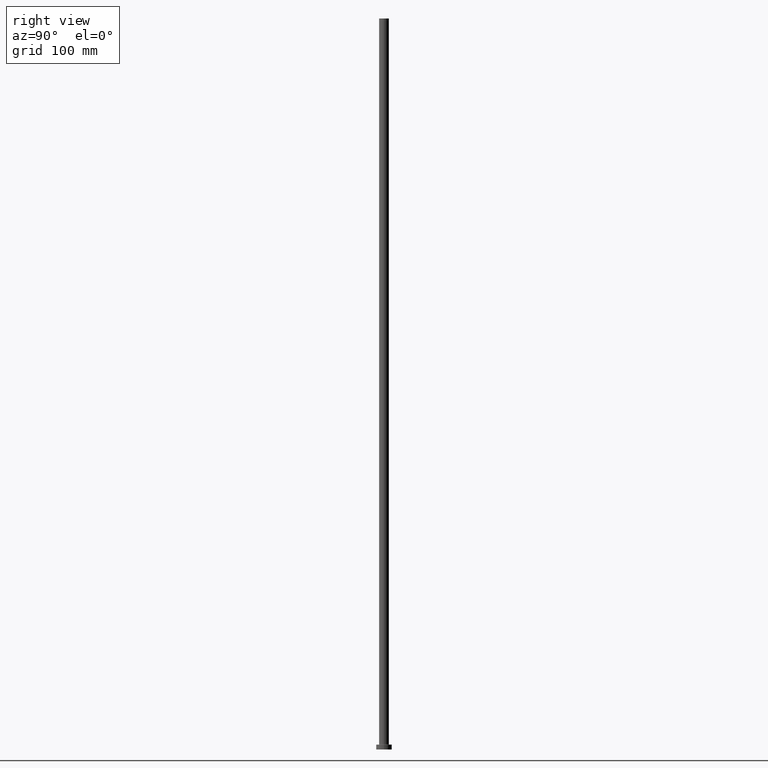
[diagram: clean part render]
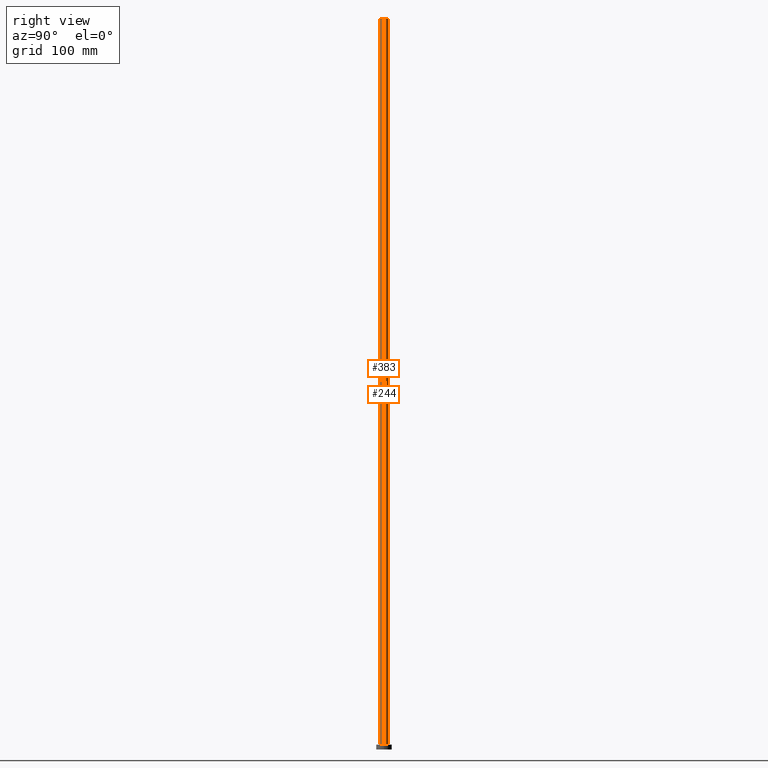
[diagram: same view with one multi-face feature highlighted, each face labeled with its STEP entity id]
A machine part, right view. The highlighted faces form ONE feature: a constant-radius fillet chain: 2 tangent blend faces with common blend radius 5 mm. The faces share edges in the B-rep.
Their STEP definitions:
[1] entity #383 (Cylinder):
#23 = AXIS2_PLACEMENT_3D ( 'NONE', #111, #321, #455 ) ;
#27 = CARTESIAN_POINT ( 'NONE',  ( -5.000000000000000000, 0.000000000000000000, 5.499999999999949374 ) ) ;
#35 = CYLINDRICAL_SURFACE ( 'NONE', #436, 5.000000000000000000 ) ;
#39 = VECTOR ( 'NONE', #63, 1000.000000000000000 ) ;
#55 = EDGE_CURVE ( 'NONE', #403, #115, #240, .T. ) ;
#63 = DIRECTION ( 'NONE',  ( -0.000000000000000000, -0.000000000000000000, -1.000000000000000000 ) ) ;
#75 = CARTESIAN_POINT ( 'NONE',  ( 0.000000000000000000, 0.000000000000000000, 750.0000000000000000 ) ) ;
#77 = CARTESIAN_POINT ( 'NONE',  ( -5.000000000000000000, 0.000000000000000000, 750.0000000000000000 ) ) ;
#83 = EDGE_LOOP ( 'NONE', ( #189, #331, #295, #157 ) ) ;
#111 = CARTESIAN_POINT ( 'NONE',  ( 0.000000000000000000, 0.000000000000000000, 5.499999999999949374 ) ) ;
#115 = VERTEX_POINT ( 'NONE', #290 ) ;
#118 = EDGE_CURVE ( 'NONE', #418, #115, #370, .T. ) ;
#157 = ORIENTED_EDGE ( 'NONE', *, *, #118, .T. ) ;
#165 = CARTESIAN_POINT ( 'NONE',  ( 0.000000000000000000, 0.000000000000000000, 750.0000000000000000 ) ) ;
#171 = EDGE_CURVE ( 'NONE', #228, #403, #193, .T. ) ;
#179 = CARTESIAN_POINT ( 'NONE',  ( -5.000000000000000000, 0.000000000000000000, 750.0000000000000000 ) ) ;
#189 = ORIENTED_EDGE ( 'NONE', *, *, #55, .F. ) ;
#193 = CIRCLE ( 'NONE', #248, 5.000000000000000000 ) ;
#195 = DIRECTION ( 'NONE',  ( 1.000000000000000000, 0.000000000000000000, 0.000000000000000000 ) ) ;
#203 = DIRECTION ( 'NONE',  ( -1.000000000000000000, 0.000000000000000000, 0.000000000000000000 ) ) ;
#228 = VERTEX_POINT ( 'NONE', #77 ) ;
#240 = LINE ( 'NONE', #384, #39 ) ;
#248 = AXIS2_PLACEMENT_3D ( 'NONE', #165, #375, #195 ) ;
#276 = CARTESIAN_POINT ( 'NONE',  ( 5.000000000000000000, 6.123233995736766282E-16, 750.0000000000000000 ) ) ;
#285 = FACE_OUTER_BOUND ( 'NONE', #83, .T. ) ;
#290 = CARTESIAN_POINT ( 'NONE',  ( 5.000000000000000000, 6.123233995736766282E-16, 5.499999999999949374 ) ) ;
#295 = ORIENTED_EDGE ( 'NONE', *, *, #387, .T. ) ;
#321 = DIRECTION ( 'NONE',  ( 0.000000000000000000, 0.000000000000000000, 1.000000000000000000 ) ) ;
#322 = LINE ( 'NONE', #179, #382 ) ;
#331 = ORIENTED_EDGE ( 'NONE', *, *, #171, .F. ) ;
#370 = CIRCLE ( 'NONE', #23, 5.000000000000000000 ) ;
#375 = DIRECTION ( 'NONE',  ( 0.000000000000000000, 0.000000000000000000, 1.000000000000000000 ) ) ;
#382 = VECTOR ( 'NONE', #460, 1000.000000000000000 ) ;
#383 = ADVANCED_FACE ( 'NONE', ( #285 ), #35, .T. ) ;
#384 = CARTESIAN_POINT ( 'NONE',  ( 5.000000000000000000, 6.123233995736766282E-16, 750.0000000000000000 ) ) ;
#387 = EDGE_CURVE ( 'NONE', #228, #418, #322, .T. ) ;
#403 = VERTEX_POINT ( 'NONE', #276 ) ;
#416 = DIRECTION ( 'NONE',  ( -0.000000000000000000, -0.000000000000000000, -1.000000000000000000 ) ) ;
#418 = VERTEX_POINT ( 'NONE', #27 ) ;
#436 = AXIS2_PLACEMENT_3D ( 'NONE', #75, #416, #203 ) ;
#455 = DIRECTION ( 'NONE',  ( 1.000000000000000000, 0.000000000000000000, 0.000000000000000000 ) ) ;
#460 = DIRECTION ( 'NONE',  ( -0.000000000000000000, -0.000000000000000000, -1.000000000000000000 ) ) ;
[2] entity #244 (Cylinder):
#1 = DIRECTION ( 'NONE',  ( 0.000000000000000000, 0.000000000000000000, 1.000000000000000000 ) ) ;
#25 = CIRCLE ( 'NONE', #32, 5.000000000000000000 ) ;
#26 = DIRECTION ( 'NONE',  ( -0.000000000000000000, -0.000000000000000000, -1.000000000000000000 ) ) ;
#27 = CARTESIAN_POINT ( 'NONE',  ( -5.000000000000000000, 0.000000000000000000, 5.499999999999949374 ) ) ;
#32 = AXIS2_PLACEMENT_3D ( 'NONE', #44, #224, #191 ) ;
#39 = VECTOR ( 'NONE', #63, 1000.000000000000000 ) ;
#44 = CARTESIAN_POINT ( 'NONE',  ( 0.000000000000000000, 0.000000000000000000, 5.499999999999949374 ) ) ;
#55 = EDGE_CURVE ( 'NONE', #403, #115, #240, .T. ) ;
#63 = DIRECTION ( 'NONE',  ( -0.000000000000000000, -0.000000000000000000, -1.000000000000000000 ) ) ;
#77 = CARTESIAN_POINT ( 'NONE',  ( -5.000000000000000000, 0.000000000000000000, 750.0000000000000000 ) ) ;
#92 = DIRECTION ( 'NONE',  ( -1.000000000000000000, 0.000000000000000000, 0.000000000000000000 ) ) ;
#94 = AXIS2_PLACEMENT_3D ( 'NONE', #397, #1, #151 ) ;
#115 = VERTEX_POINT ( 'NONE', #290 ) ;
#146 = EDGE_CURVE ( 'NONE', #403, #228, #434, .T. ) ;
#151 = DIRECTION ( 'NONE',  ( 1.000000000000000000, 0.000000000000000000, 0.000000000000000000 ) ) ;
#159 = ORIENTED_EDGE ( 'NONE', *, *, #215, .T. ) ;
#179 = CARTESIAN_POINT ( 'NONE',  ( -5.000000000000000000, 0.000000000000000000, 750.0000000000000000 ) ) ;
#191 = DIRECTION ( 'NONE',  ( 1.000000000000000000, 0.000000000000000000, 0.000000000000000000 ) ) ;
#215 = EDGE_CURVE ( 'NONE', #115, #418, #25, .T. ) ;
#224 = DIRECTION ( 'NONE',  ( 0.000000000000000000, 0.000000000000000000, 1.000000000000000000 ) ) ;
#228 = VERTEX_POINT ( 'NONE', #77 ) ;
#240 = LINE ( 'NONE', #384, #39 ) ;
#244 = ADVANCED_FACE ( 'NONE', ( #348 ), #351, .T. ) ;
#253 = ORIENTED_EDGE ( 'NONE', *, *, #387, .F. ) ;
#255 = EDGE_LOOP ( 'NONE', ( #456, #461, #159, #253 ) ) ;
#276 = CARTESIAN_POINT ( 'NONE',  ( 5.000000000000000000, 6.123233995736766282E-16, 750.0000000000000000 ) ) ;
#290 = CARTESIAN_POINT ( 'NONE',  ( 5.000000000000000000, 6.123233995736766282E-16, 5.499999999999949374 ) ) ;
#313 = AXIS2_PLACEMENT_3D ( 'NONE', #377, #26, #92 ) ;
#322 = LINE ( 'NONE', #179, #382 ) ;
#348 = FACE_OUTER_BOUND ( 'NONE', #255, .T. ) ;
#351 = CYLINDRICAL_SURFACE ( 'NONE', #313, 5.000000000000000000 ) ;
#377 = CARTESIAN_POINT ( 'NONE',  ( 0.000000000000000000, 0.000000000000000000, 750.0000000000000000 ) ) ;
#382 = VECTOR ( 'NONE', #460, 1000.000000000000000 ) ;
#384 = CARTESIAN_POINT ( 'NONE',  ( 5.000000000000000000, 6.123233995736766282E-16, 750.0000000000000000 ) ) ;
#387 = EDGE_CURVE ( 'NONE', #228, #418, #322, .T. ) ;
#397 = CARTESIAN_POINT ( 'NONE',  ( 0.000000000000000000, 0.000000000000000000, 750.0000000000000000 ) ) ;
#403 = VERTEX_POINT ( 'NONE', #276 ) ;
#418 = VERTEX_POINT ( 'NONE', #27 ) ;
#434 = CIRCLE ( 'NONE', #94, 5.000000000000000000 ) ;
#456 = ORIENTED_EDGE ( 'NONE', *, *, #146, .F. ) ;
#460 = DIRECTION ( 'NONE',  ( -0.000000000000000000, -0.000000000000000000, -1.000000000000000000 ) ) ;
#461 = ORIENTED_EDGE ( 'NONE', *, *, #55, .T. ) ;